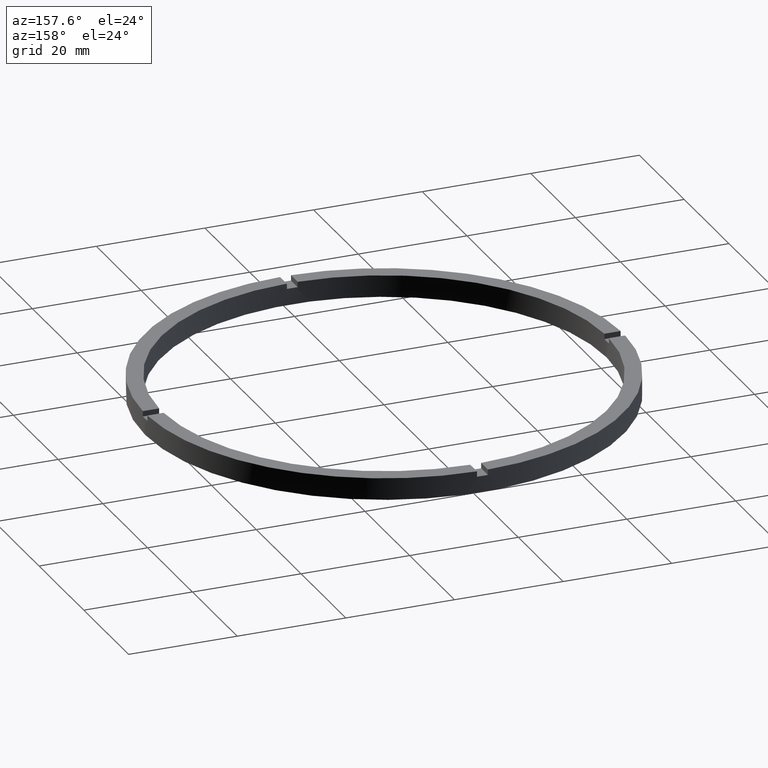
[diagram: clean part render]
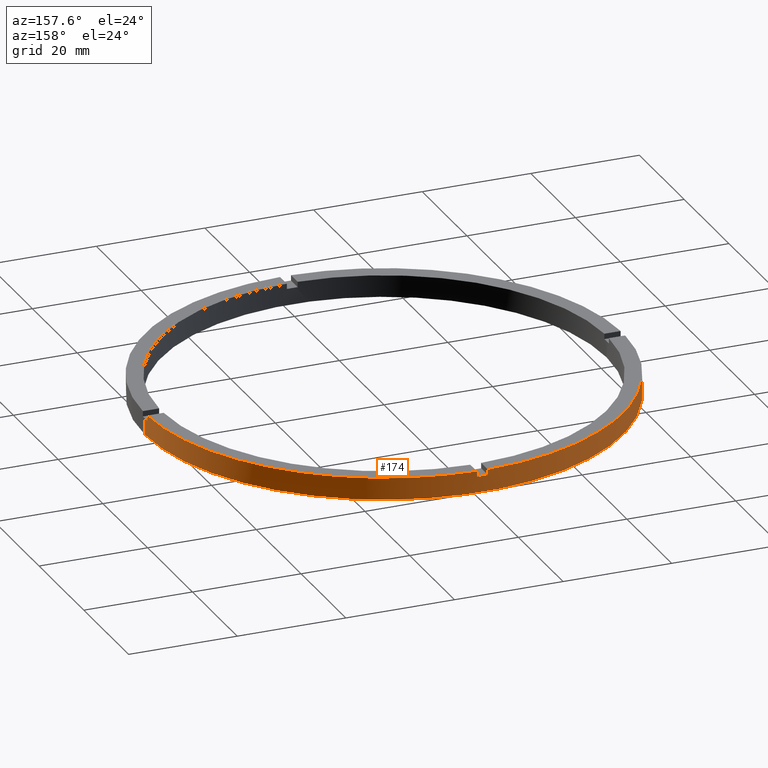
[diagram: same view with one face highlighted and labeled with its STEP entity id]
A machine part, auxiliary view. The second image highlights one B-rep face of the part: STEP entity #174.
In plain terms, the highlighted cylindrical surface (partial cylindrical patch) has radius 44 mm, axis along (-0, -0, -1).
Its self-contained STEP definition (entity closure, byte-faithful):
#5 = ORIENTED_EDGE ( 'NONE', *, *, #253, .T. ) ;
#14 = FACE_OUTER_BOUND ( 'NONE', #773, .T. ) ;
#18 = EDGE_CURVE ( 'NONE', #256, #695, #567, .T. ) ;
#30 = VECTOR ( 'NONE', #35, 1000.000000000000000 ) ;
#33 = CIRCLE ( 'NONE', #639, 44.00000000000000000 ) ;
#35 = DIRECTION ( 'NONE',  ( 0.000000000000000000, 0.000000000000000000, 1.000000000000000000 ) ) ;
#51 = CIRCLE ( 'NONE', #68, 44.00000000000000000 ) ;
#59 = VECTOR ( 'NONE', #162, 1000.000000000000000 ) ;
#61 = LINE ( 'NONE', #336, #315 ) ;
#68 = AXIS2_PLACEMENT_3D ( 'NONE', #434, #527, #605 ) ;
#71 = LINE ( 'NONE', #276, #328 ) ;
#78 = CARTESIAN_POINT ( 'NONE',  ( -44.00000000000000000, 0.000000000000000000, 3.000000000000000000 ) ) ;
#83 = EDGE_CURVE ( 'NONE', #86, #191, #61, .T. ) ;
#85 = VERTEX_POINT ( 'NONE', #412 ) ;
#86 = VERTEX_POINT ( 'NONE', #78 ) ;
#89 = CARTESIAN_POINT ( 'NONE',  ( 44.00000000000000000, 5.388445916248353619E-15, 3.000000000000000000 ) ) ;
#93 = CARTESIAN_POINT ( 'NONE',  ( 44.00000000000000000, 5.388445916248353619E-15, 4.000000000000000000 ) ) ;
#101 = DIRECTION ( 'NONE',  ( 1.000000000000000000, 0.000000000000000000, 0.000000000000000000 ) ) ;
#105 = CARTESIAN_POINT ( 'NONE',  ( -1.000000000000025979, 43.98863489584553577, 3.000000000000000000 ) ) ;
#114 = EDGE_CURVE ( 'NONE', #260, #333, #574, .T. ) ;
#123 = DIRECTION ( 'NONE',  ( 0.000000000000000000, 0.000000000000000000, 1.000000000000000000 ) ) ;
#139 = CARTESIAN_POINT ( 'NONE',  ( 0.000000000000000000, 0.000000000000000000, 4.000000000000000000 ) ) ;
#143 = EDGE_CURVE ( 'NONE', #260, #85, #576, .T. ) ;
#154 = ORIENTED_EDGE ( 'NONE', *, *, #289, .F. ) ;
#157 = DIRECTION ( 'NONE',  ( 1.000000000000000000, 0.000000000000000000, 0.000000000000000000 ) ) ;
#162 = DIRECTION ( 'NONE',  ( -0.000000000000000000, -0.000000000000000000, -1.000000000000000000 ) ) ;
#174 = ADVANCED_FACE ( 'NONE', ( #14 ), #536, .T. ) ;
#191 = VERTEX_POINT ( 'NONE', #764 ) ;
#214 = ORIENTED_EDGE ( 'NONE', *, *, #666, .T. ) ;
#219 = CARTESIAN_POINT ( 'NONE',  ( -43.98863489584554287, 0.9999999999999705791, 3.000000000000000000 ) ) ;
#222 = ORIENTED_EDGE ( 'NONE', *, *, #404, .F. ) ;
#224 = CARTESIAN_POINT ( 'NONE',  ( 0.9999999999999740208, 43.98863489584554287, 4.000000000000000000 ) ) ;
#236 = DIRECTION ( 'NONE',  ( 0.000000000000000000, 0.000000000000000000, 1.000000000000000000 ) ) ;
#244 = DIRECTION ( 'NONE',  ( -0.000000000000000000, -0.000000000000000000, -1.000000000000000000 ) ) ;
#253 = EDGE_CURVE ( 'NONE', #256, #333, #325, .T. ) ;
#256 = VERTEX_POINT ( 'NONE', #407 ) ;
#259 = EDGE_CURVE ( 'NONE', #436, #478, #327, .T. ) ;
#260 = VERTEX_POINT ( 'NONE', #774 ) ;
#261 = DIRECTION ( 'NONE',  ( 1.000000000000000000, 0.000000000000000000, 0.000000000000000000 ) ) ;
#263 = ORIENTED_EDGE ( 'NONE', *, *, #664, .T. ) ;
#264 = CARTESIAN_POINT ( 'NONE',  ( 43.98863489584554287, 0.9999999999998436806, 3.000000000000000000 ) ) ;
#276 = CARTESIAN_POINT ( 'NONE',  ( 43.98863489584554287, 0.9999999999998436806, 4.000000000000000000 ) ) ;
#289 = EDGE_CURVE ( 'NONE', #436, #334, #587, .T. ) ;
#315 = VECTOR ( 'NONE', #598, 1000.000000000000000 ) ;
#325 = LINE ( 'NONE', #710, #59 ) ;
#327 = LINE ( 'NONE', #93, #590 ) ;
#328 = VECTOR ( 'NONE', #606, 1000.000000000000000 ) ;
#333 = VERTEX_POINT ( 'NONE', #105 ) ;
#334 = VERTEX_POINT ( 'NONE', #264 ) ;
#336 = CARTESIAN_POINT ( 'NONE',  ( -44.00000000000000000, 0.000000000000000000, 4.000000000000000000 ) ) ;
#353 = AXIS2_PLACEMENT_3D ( 'NONE', #361, #395, #157 ) ;
#357 = EDGE_CURVE ( 'NONE', #665, #334, #71, .T. ) ;
#361 = CARTESIAN_POINT ( 'NONE',  ( 0.000000000000000000, 0.000000000000000000, 3.000000000000000000 ) ) ;
#371 = DIRECTION ( 'NONE',  ( 1.000000000000000000, 0.000000000000000000, 0.000000000000000000 ) ) ;
#390 = AXIS2_PLACEMENT_3D ( 'NONE', #411, #739, #101 ) ;
#392 = DIRECTION ( 'NONE',  ( -1.000000000000000000, 0.000000000000000000, 0.000000000000000000 ) ) ;
#395 = DIRECTION ( 'NONE',  ( 0.000000000000000000, 0.000000000000000000, 1.000000000000000000 ) ) ;
#396 = AXIS2_PLACEMENT_3D ( 'NONE', #139, #123, #261 ) ;
#398 = CARTESIAN_POINT ( 'NONE',  ( 0.000000000000000000, 0.000000000000000000, 4.000000000000000000 ) ) ;
#404 = EDGE_CURVE ( 'NONE', #665, #85, #504, .T. ) ;
#405 = AXIS2_PLACEMENT_3D ( 'NONE', #780, #615, #549 ) ;
#407 = CARTESIAN_POINT ( 'NONE',  ( -1.000000000000025979, 43.98863489584553577, 4.000000000000000000 ) ) ;
#411 = CARTESIAN_POINT ( 'NONE',  ( 0.000000000000000000, 0.000000000000000000, 4.000000000000000000 ) ) ;
#412 = CARTESIAN_POINT ( 'NONE',  ( 0.9999999999999740208, 43.98863489584554287, 4.000000000000000000 ) ) ;
#434 = CARTESIAN_POINT ( 'NONE',  ( 0.000000000000000000, 0.000000000000000000, 3.000000000000000000 ) ) ;
#436 = VERTEX_POINT ( 'NONE', #89 ) ;
#457 = ORIENTED_EDGE ( 'NONE', *, *, #83, .F. ) ;
#465 = ORIENTED_EDGE ( 'NONE', *, *, #143, .T. ) ;
#467 = ORIENTED_EDGE ( 'NONE', *, *, #357, .T. ) ;
#470 = DIRECTION ( 'NONE',  ( -0.000000000000000000, -0.000000000000000000, -1.000000000000000000 ) ) ;
#478 = VERTEX_POINT ( 'NONE', #775 ) ;
#483 = ORIENTED_EDGE ( 'NONE', *, *, #114, .F. ) ;
#497 = ORIENTED_EDGE ( 'NONE', *, *, #584, .F. ) ;
#504 = CIRCLE ( 'NONE', #390, 44.00000000000000000 ) ;
#512 = CARTESIAN_POINT ( 'NONE',  ( 43.98863489584554287, 0.9999999999998436806, 4.000000000000000000 ) ) ;
#521 = CARTESIAN_POINT ( 'NONE',  ( -43.98863489584554287, 0.9999999999999705791, 4.000000000000000000 ) ) ;
#527 = DIRECTION ( 'NONE',  ( 0.000000000000000000, 0.000000000000000000, 1.000000000000000000 ) ) ;
#536 = CYLINDRICAL_SURFACE ( 'NONE', #770, 44.00000000000000000 ) ;
#543 = LINE ( 'NONE', #740, #30 ) ;
#549 = DIRECTION ( 'NONE',  ( 1.000000000000000000, 0.000000000000000000, 0.000000000000000000 ) ) ;
#555 = VECTOR ( 'NONE', #236, 1000.000000000000000 ) ;
#567 = CIRCLE ( 'NONE', #396, 44.00000000000000000 ) ;
#574 = CIRCLE ( 'NONE', #405, 44.00000000000000000 ) ;
#576 = LINE ( 'NONE', #224, #555 ) ;
#584 = EDGE_CURVE ( 'NONE', #717, #86, #51, .T. ) ;
#585 = CARTESIAN_POINT ( 'NONE',  ( 0.000000000000000000, 0.000000000000000000, 0.000000000000000000 ) ) ;
#587 = CIRCLE ( 'NONE', #353, 44.00000000000000000 ) ;
#590 = VECTOR ( 'NONE', #244, 1000.000000000000000 ) ;
#598 = DIRECTION ( 'NONE',  ( -0.000000000000000000, -0.000000000000000000, -1.000000000000000000 ) ) ;
#605 = DIRECTION ( 'NONE',  ( 1.000000000000000000, 0.000000000000000000, 0.000000000000000000 ) ) ;
#606 = DIRECTION ( 'NONE',  ( -0.000000000000000000, -0.000000000000000000, -1.000000000000000000 ) ) ;
#615 = DIRECTION ( 'NONE',  ( 0.000000000000000000, -0.000000000000000000, 1.000000000000000000 ) ) ;
#628 = DIRECTION ( 'NONE',  ( 0.000000000000000000, 0.000000000000000000, 1.000000000000000000 ) ) ;
#639 = AXIS2_PLACEMENT_3D ( 'NONE', #585, #628, #371 ) ;
#664 = EDGE_CURVE ( 'NONE', #478, #191, #33, .T. ) ;
#665 = VERTEX_POINT ( 'NONE', #512 ) ;
#666 = EDGE_CURVE ( 'NONE', #717, #695, #543, .T. ) ;
#695 = VERTEX_POINT ( 'NONE', #521 ) ;
#710 = CARTESIAN_POINT ( 'NONE',  ( -1.000000000000025979, 43.98863489584553577, 4.000000000000000000 ) ) ;
#717 = VERTEX_POINT ( 'NONE', #219 ) ;
#721 = ORIENTED_EDGE ( 'NONE', *, *, #259, .T. ) ;
#726 = ORIENTED_EDGE ( 'NONE', *, *, #18, .F. ) ;
#739 = DIRECTION ( 'NONE',  ( 0.000000000000000000, 0.000000000000000000, 1.000000000000000000 ) ) ;
#740 = CARTESIAN_POINT ( 'NONE',  ( -43.98863489584554287, 0.9999999999999705791, 4.000000000000000000 ) ) ;
#764 = CARTESIAN_POINT ( 'NONE',  ( -44.00000000000000000, 0.000000000000000000, 0.000000000000000000 ) ) ;
#770 = AXIS2_PLACEMENT_3D ( 'NONE', #398, #470, #392 ) ;
#773 = EDGE_LOOP ( 'NONE', ( #154, #721, #263, #457, #497, #214, #726, #5, #483, #465, #222, #467 ) ) ;
#774 = CARTESIAN_POINT ( 'NONE',  ( 0.9999999999999740208, 43.98863489584554287, 3.000000000000000000 ) ) ;
#775 = CARTESIAN_POINT ( 'NONE',  ( 44.00000000000000000, 5.388445916248353619E-15, 0.000000000000000000 ) ) ;
#780 = CARTESIAN_POINT ( 'NONE',  ( 0.000000000000000000, 0.000000000000000000, 3.000000000000000000 ) ) ;